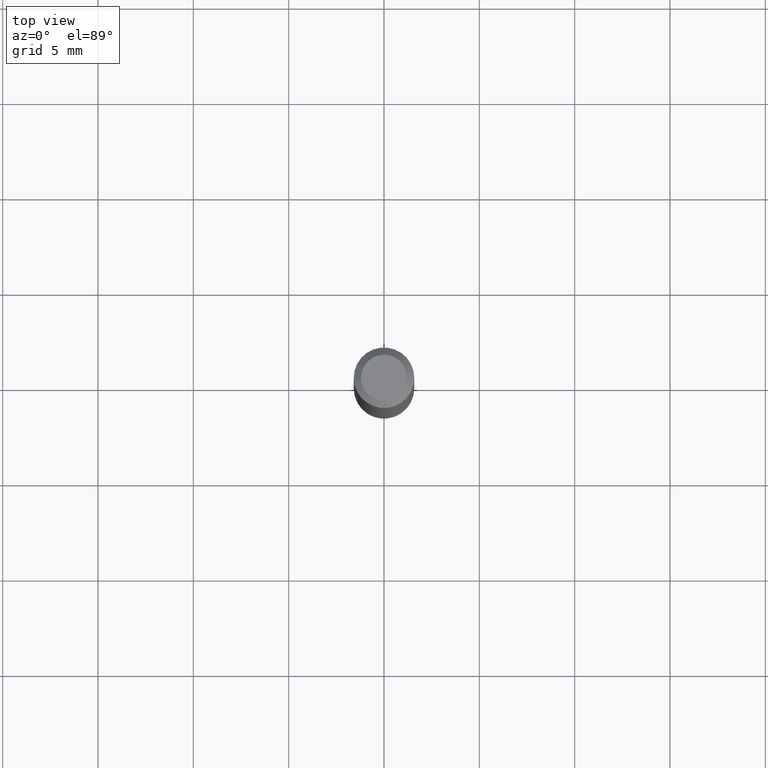
[diagram: clean part render]
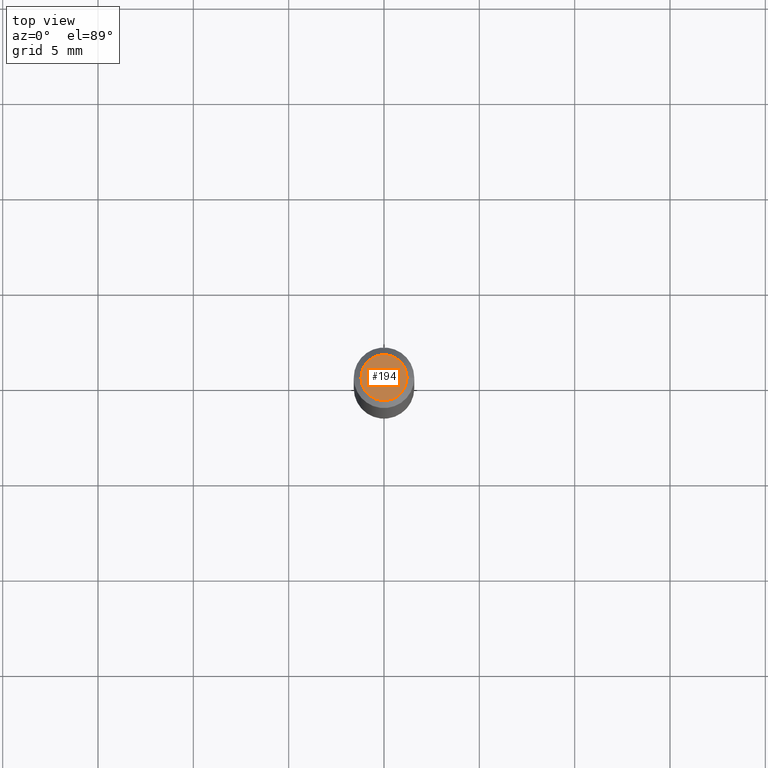
[diagram: same view with one face highlighted and labeled with its STEP entity id]
A machine part, top view. The second image highlights one B-rep face of the part: STEP entity #194.
In plain terms, the highlighted planar face has unit normal (0, -0, -1).
Its self-contained STEP definition (entity closure, byte-faithful):
#21 = ORIENTED_EDGE ( 'NONE', *, *, #197, .T. ) ;
#28 = AXIS2_PLACEMENT_3D ( 'NONE', #449, #186, #464 ) ;
#80 = DIRECTION ( 'NONE',  ( -2.445468806185136597E-29, 3.491481338843145583E-15, 1.000000000000000000 ) ) ;
#110 = CARTESIAN_POINT ( 'NONE',  ( 0.04749999999999999362, -4.035134999187587991E-16, -5.229656247639753758E-16 ) ) ;
#112 = AXIS2_PLACEMENT_3D ( 'NONE', #425, #80, #116 ) ;
#116 = DIRECTION ( 'NONE',  ( 1.000000000000000000, -6.982962677686267499E-15, 4.852736867747366768E-29 ) ) ;
#139 = CARTESIAN_POINT ( 'NONE',  ( -0.04749999999999999362, 3.578768372314202124E-16, -5.229656247639803061E-16 ) ) ;
#169 = CIRCLE ( 'NONE', #229, 0.04749999999999999362 ) ;
#186 = DIRECTION ( 'NONE',  ( 2.438088387897960049E-29, -3.491481338843145188E-15, -1.000000000000000000 ) ) ;
#194 = ADVANCED_FACE ( 'NONE', ( #306 ), #457, .F. ) ;
#197 = EDGE_CURVE ( 'NONE', #334, #320, #460, .T. ) ;
#210 = CARTESIAN_POINT ( 'NONE',  ( 1.278896122067429216E-44, -1.825924719719875646E-30, -5.229656247639779395E-16 ) ) ;
#213 = ORIENTED_EDGE ( 'NONE', *, *, #295, .T. ) ;
#229 = AXIS2_PLACEMENT_3D ( 'NONE', #210, #442, #341 ) ;
#295 = EDGE_CURVE ( 'NONE', #320, #334, #169, .T. ) ;
#306 = FACE_OUTER_BOUND ( 'NONE', #402, .T. ) ;
#320 = VERTEX_POINT ( 'NONE', #110 ) ;
#334 = VERTEX_POINT ( 'NONE', #139 ) ;
#341 = DIRECTION ( 'NONE',  ( 1.000000000000000000, -6.982962677686267499E-15, 4.852736867747366768E-29 ) ) ;
#402 = EDGE_LOOP ( 'NONE', ( #21, #213 ) ) ;
#425 = CARTESIAN_POINT ( 'NONE',  ( 1.278896122067429216E-44, -1.825924719719875646E-30, -5.229656247639779395E-16 ) ) ;
#442 = DIRECTION ( 'NONE',  ( -2.445468806185136597E-29, 3.491481338843145583E-15, 1.000000000000000000 ) ) ;
#449 = CARTESIAN_POINT ( 'NONE',  ( 3.316907271900976096E-16, 0.04749999999999999362, -4.273281759770383169E-16 ) ) ;
#457 = PLANE ( 'NONE',  #28 ) ;
#460 = CIRCLE ( 'NONE', #112, 0.04749999999999999362 ) ;
#464 = DIRECTION ( 'NONE',  ( -1.000000000000000000, 6.982962677686265922E-15, -4.876176775795935793E-29 ) ) ;